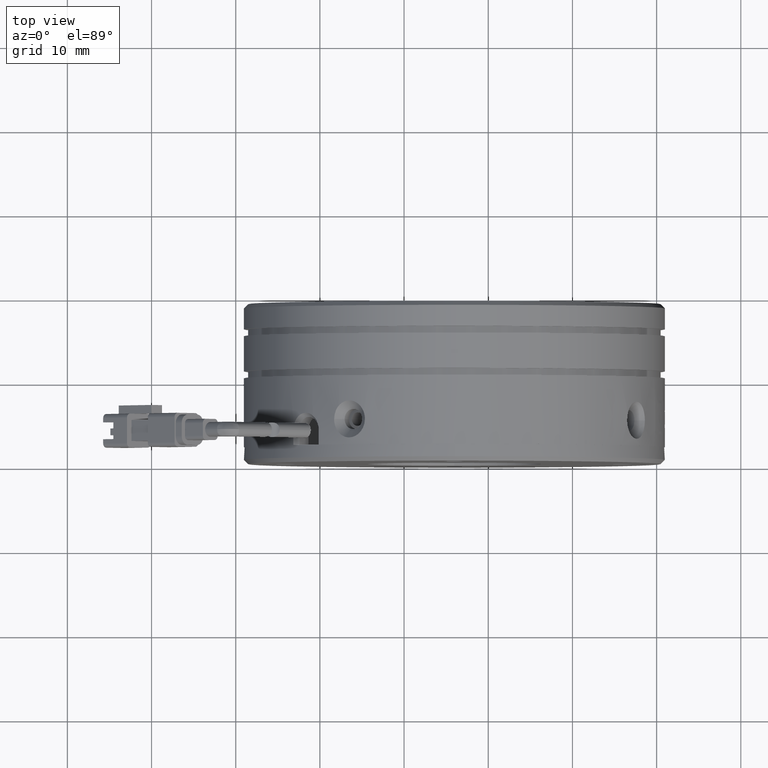
[diagram: clean part render]
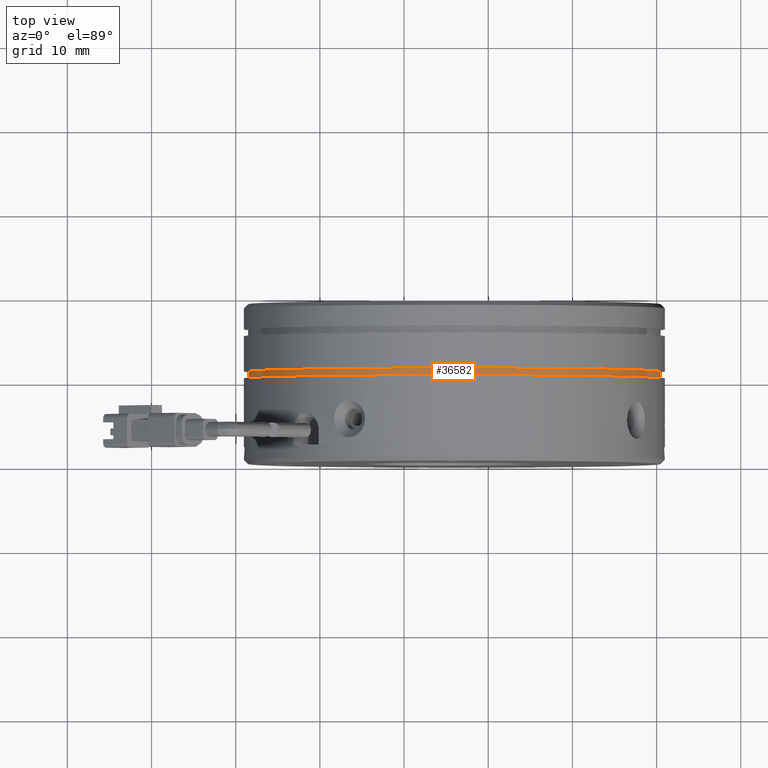
[diagram: same view with one face highlighted and labeled with its STEP entity id]
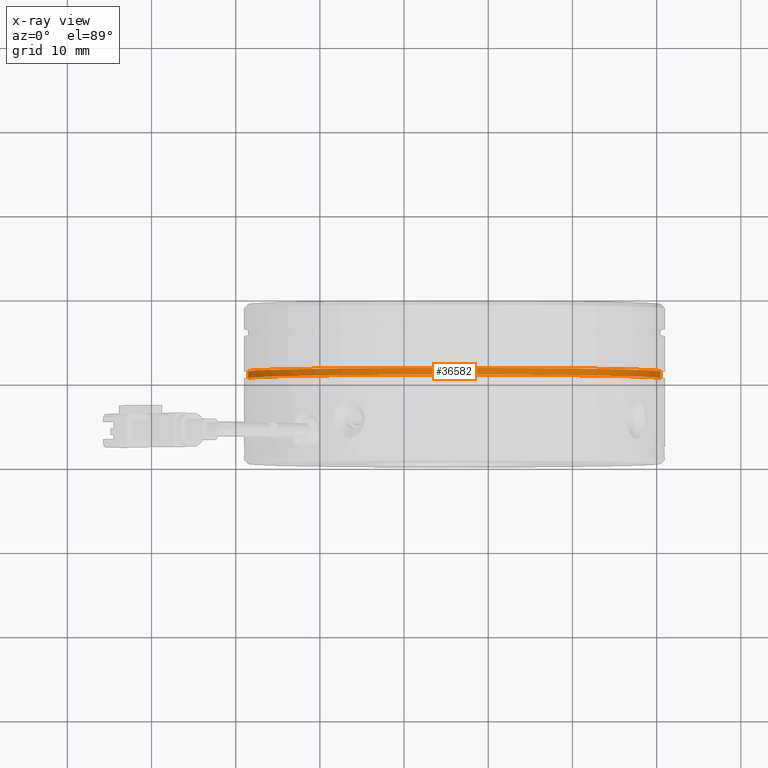
[diagram: x-ray of the same camera — body ghosted, the highlighted face saturated]
A machine part, top view. The second image highlights one B-rep face of the part: STEP entity #36582.
The next image is the same camera in x-ray: the body ghosted, the highlighted face saturated — about 0% of this face is hidden behind the body in this view.
In plain terms, the highlighted cylindrical surface (partial cylindrical patch) has radius 24.5 mm, axis along (0, 1, -0).
Its self-contained STEP definition (entity closure, byte-faithful):
#1355 = CARTESIAN_POINT ( 'NONE',  ( 20.47418136128692400, 10.36823414706071000, 3.361451086403000600E-015 ) ) ;
#2674 = VERTEX_POINT ( 'NONE', #53207 ) ;
#3027 = DIRECTION ( 'NONE',  ( 0.0000000000000000000, 1.000000000000000000, -0.0000000000000000000 ) ) ;
#5068 = AXIS2_PLACEMENT_3D ( 'NONE', #38004, #9164, #42833 ) ;
#8180 = EDGE_LOOP ( 'NONE', ( #33525, #34421, #37136, #37990 ) ) ;
#9164 = DIRECTION ( 'NONE',  ( -0.0000000000000000000, -1.000000000000000000, 0.0000000000000000000 ) ) ;
#12303 = VERTEX_POINT ( 'NONE', #52784 ) ;
#13841 = CARTESIAN_POINT ( 'NONE',  ( -4.025818638713078100, 10.36823414706071000, 3.557538378468061400E-016 ) ) ;
#15166 = CARTESIAN_POINT ( 'NONE',  ( -28.52581863871307600, 10.36823414706071000, 3.504412472016271700E-016 ) ) ;
#15613 = CARTESIAN_POINT ( 'NONE',  ( -4.025818638713078100, 15.96823414706070900, 3.557538378468061400E-016 ) ) ;
#17611 = VERTEX_POINT ( 'NONE', #15166 ) ;
#17761 = CARTESIAN_POINT ( 'NONE',  ( -28.52581863871307600, 15.96823414706070900, 3.504412472016271700E-016 ) ) ;
#18708 = DIRECTION ( 'NONE',  ( -1.000000000000000000, 0.0000000000000000000, -2.168404344971005700E-019 ) ) ;
#21740 = VECTOR ( 'NONE', #60015, 1000.000000000000000 ) ;
#26388 = VERTEX_POINT ( 'NONE', #1355 ) ;
#30500 = CIRCLE ( 'NONE', #47009, 24.50000000000000000 ) ;
#32600 = CIRCLE ( 'NONE', #5068, 24.50000000000000000 ) ;
#33525 = ORIENTED_EDGE ( 'NONE', *, *, #55453, .T. ) ;
#33784 = VECTOR ( 'NONE', #3027, 1000.000000000000000 ) ;
#33958 = CYLINDRICAL_SURFACE ( 'NONE', #40215, 24.50000000000000000 ) ;
#34421 = ORIENTED_EDGE ( 'NONE', *, *, #47068, .T. ) ;
#34512 = LINE ( 'NONE', #50454, #21740 ) ;
#36582 = ADVANCED_FACE ( 'NONE', ( #38517 ), #33958, .T. ) ;
#37136 = ORIENTED_EDGE ( 'NONE', *, *, #54644, .T. ) ;
#37990 = ORIENTED_EDGE ( 'NONE', *, *, #44269, .F. ) ;
#38004 = CARTESIAN_POINT ( 'NONE',  ( -4.025818638713078100, 11.16823414706071000, 3.557538378468061400E-016 ) ) ;
#38517 = FACE_OUTER_BOUND ( 'NONE', #8180, .T. ) ;
#40215 = AXIS2_PLACEMENT_3D ( 'NONE', #15613, #58580, #49221 ) ;
#42833 = DIRECTION ( 'NONE',  ( -1.000000000000000000, 0.0000000000000000000, -2.168404344971005700E-019 ) ) ;
#44269 = EDGE_CURVE ( 'NONE', #17611, #12303, #46525, .T. ) ;
#46525 = LINE ( 'NONE', #17761, #33784 ) ;
#47009 = AXIS2_PLACEMENT_3D ( 'NONE', #13841, #47430, #18708 ) ;
#47068 = EDGE_CURVE ( 'NONE', #26388, #2674, #34512, .T. ) ;
#47430 = DIRECTION ( 'NONE',  ( 0.0000000000000000000, 1.000000000000000000, -0.0000000000000000000 ) ) ;
#49221 = DIRECTION ( 'NONE',  ( -1.000000000000000000, 0.0000000000000000000, -2.168404344971005700E-019 ) ) ;
#50454 = CARTESIAN_POINT ( 'NONE',  ( 20.47418136128692400, 15.96823414706070900, 3.361451086403000600E-015 ) ) ;
#52784 = CARTESIAN_POINT ( 'NONE',  ( -28.52581863871307600, 11.16823414706071000, 3.504412472016271700E-016 ) ) ;
#53207 = CARTESIAN_POINT ( 'NONE',  ( 20.47418136128692400, 11.16823414706071000, 3.361451086403000600E-015 ) ) ;
#54644 = EDGE_CURVE ( 'NONE', #2674, #12303, #32600, .T. ) ;
#55453 = EDGE_CURVE ( 'NONE', #17611, #26388, #30500, .T. ) ;
#58580 = DIRECTION ( 'NONE',  ( 0.0000000000000000000, 1.000000000000000000, -0.0000000000000000000 ) ) ;
#60015 = DIRECTION ( 'NONE',  ( 0.0000000000000000000, 1.000000000000000000, -0.0000000000000000000 ) ) ;